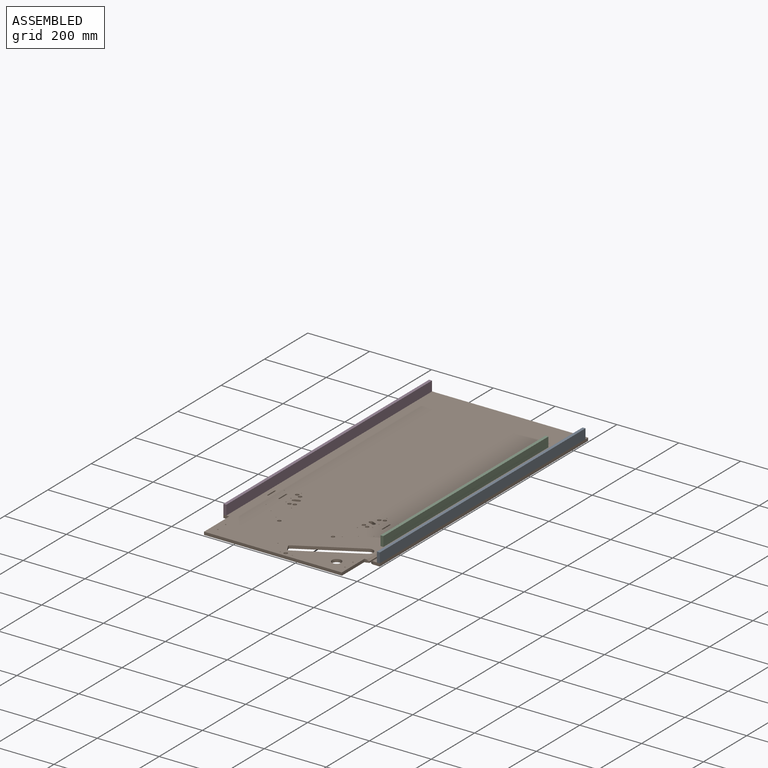
[diagram: assembled view]
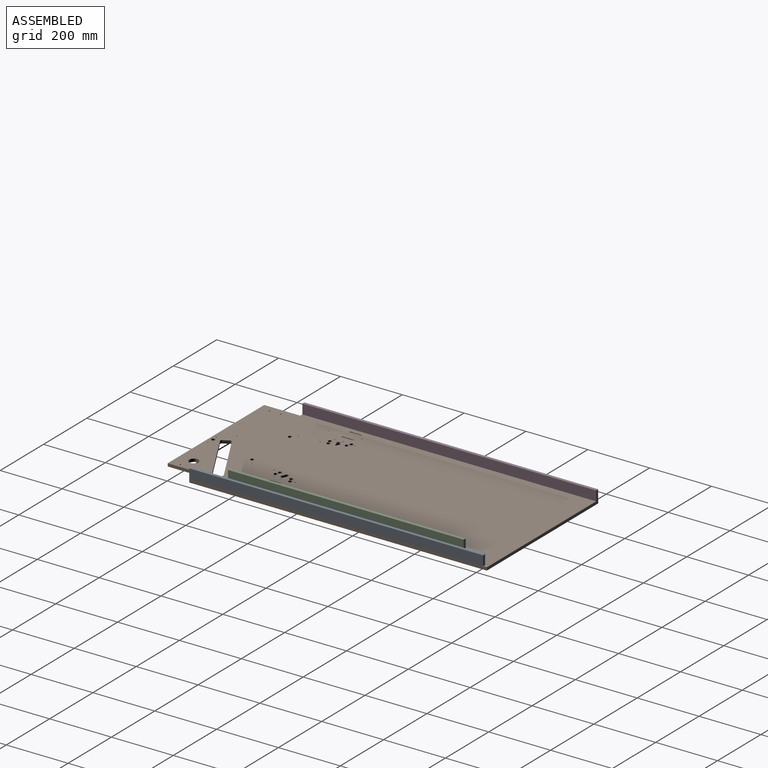
[diagram: assembled view, second angle]
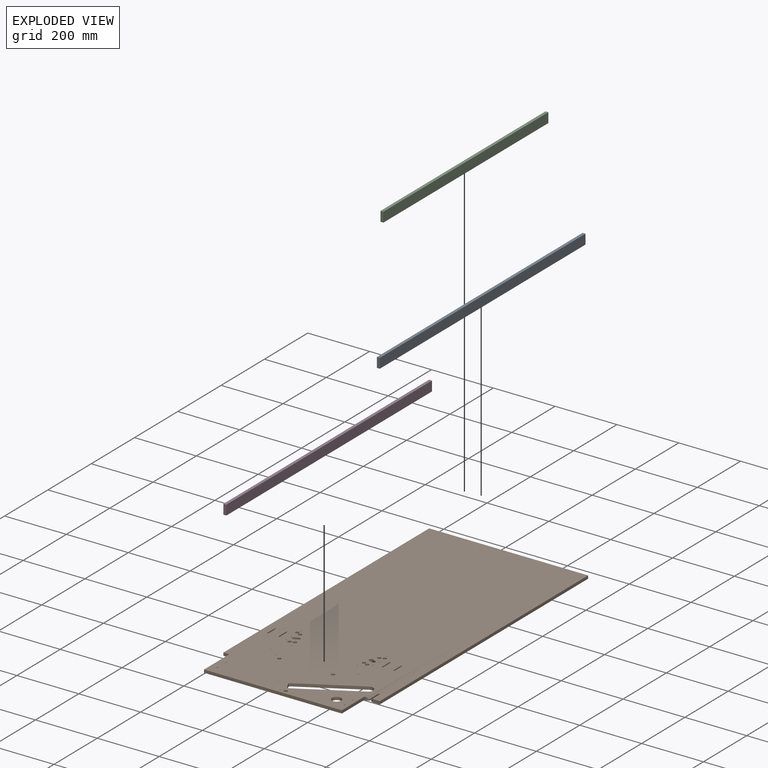
[diagram: exploded view]
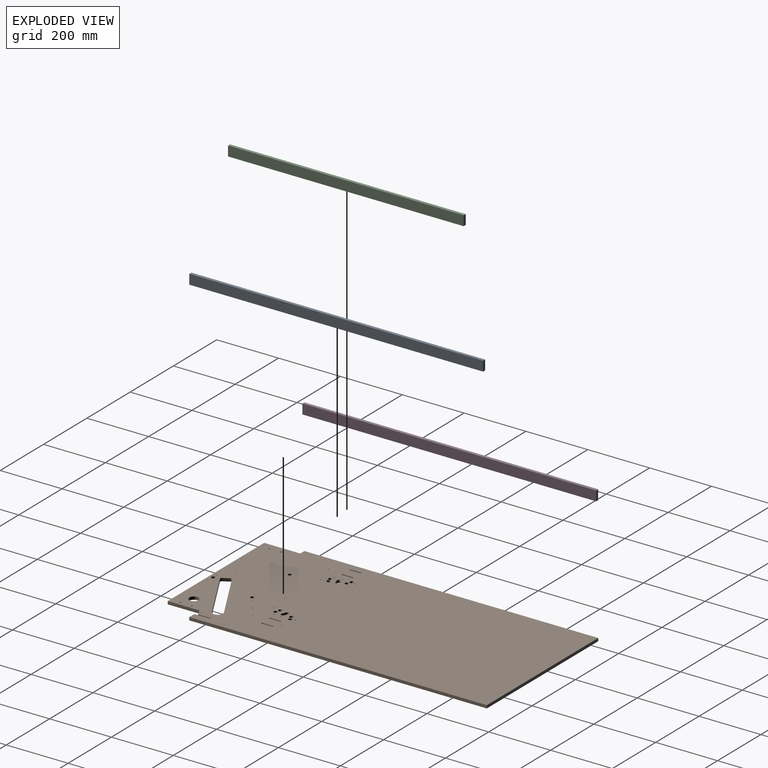
[diagram: exploded view, second angle]
ASSEMBLY  parts=4 mates=7
PART A: 6 faces, bbox 9.5x950x31.8 mm
  f0: plane 949.96x31.75mm, normal (-1,0,0), area 30161.2mm2, adj f1,f3,f4,f5
  f1: plane 31.75x9.53mm, normal (0,-1,0), area 302.4mm2, adj f0,f2,f4,f5
  f2: plane 949.96x31.75mm, normal (1,0,0), area 30161.2mm2, adj f1,f3,f4,f5
  f3: plane 31.75x9.53mm, normal (0,1,0), area 302.4mm2, adj f0,f2,f4,f5
  f4: plane 949.96x9.53mm, normal (0,0,1), area 9048.4mm2, adj f0,f1,f2,f3
  f5: plane 949.96x9.53mm, normal (0,0,-1), area 9048.4mm2, adj f0,f1,f2,f3
PART B: 84 faces, bbox 514.3x1066.8x12.4 mm
  f0: extruded ~11.26x9.53mm, area 174.3mm2, adj f1,f80,f81,f82
  f1: plane 12.24x9.53mm, normal (0.36,-0.93,0), area 125mm2, adj f0,f2,f81,f82
  f2: extruded ~11.26x9.53mm, area 174.3mm2, adj f1,f80,f81,f82
  f3: cylinder r=5.82mm len=11.26mm, axis (0,0,-1), area 174.3mm2, adj f4,f38,f81,f82
  f4: plane 12.24x9.53mm, normal (0.36,0.93,0), area 125mm2, adj f3,f5,f81,f82
  f5: cylinder r=5.82mm len=11.26mm, axis (0,0,-1), area 174.3mm2, adj f4,f38,f81,f82
  f6: cylinder r=2.13mm len=9.53mm, axis (0,0,-1), area 63.8mm2, adj f7,f39,f81,f82
  f7: plane 33.8x9.53mm, normal (1,0,0), area 321.9mm2, adj f6,f8,f81,f82
  f8: cylinder r=2.13mm len=9.53mm, axis (0,0,-1), area 63.8mm2, adj f7,f39,f81,f82
  f9: cylinder r=2.13mm len=9.53mm, axis (0,0,-1), area 63.8mm2, adj f10,f40,f81,f82
  f10: plane 33.8x9.53mm, normal (1,0,0), area 321.9mm2, adj f9,f11,f81,f82
  f11: cylinder r=2.13mm len=9.53mm, axis (0,0,-1), area 63.8mm2, adj f10,f40,f81,f82
  f12: cylinder r=2.13mm len=9.53mm, axis (0,0,-1), area 63.8mm2, adj f13,f41,f81,f82
  f13: plane 33.8x9.53mm, normal (1,0,0), area 321.9mm2, adj f12,f14,f81,f82
  f14: cylinder r=2.13mm len=9.53mm, axis (0,0,-1), area 63.8mm2, adj f13,f41,f81,f82
  f15: cylinder r=15.94mm len=21.69mm, axis (0,0,-1), area 238.4mm2, adj f16,f42,f81,f82
  f16: plane 182.72x102.15mm, normal (-0.49,0.87,0), area 1993.9mm2, adj f15,f17,f81,f82
  f17: cylinder r=5.14mm len=9.53mm, axis (0,0,-1), area 76.9mm2, adj f16,f18,f81,f82
  f18: plane 18.98x10.61mm, normal (0.87,0.49,0), area 207.1mm2, adj f17,f19,f81,f82
  f19: cylinder r=5.14mm len=9.53mm, axis (0,0,-1), area 76.9mm2, adj f18,f20,f81,f82
  f20: plane 182.72x102.15mm, normal (0.49,-0.87,0), area 1993.9mm2, adj f19,f21,f81,f82
  f21: cylinder r=15.94mm len=21.69mm, axis (0,0,-1), area 238.4mm2, adj f20,f42,f81,f82
  f22: cylinder r=2.13mm len=9.53mm, axis (0,0,-1), area 63.8mm2, adj f23,f78,f81,f82
  f23: plane 33.8x9.53mm, normal (-1,0,0), area 321.9mm2, adj f22,f24,f81,f82
  f24: cylinder r=2.13mm len=9.53mm, axis (0,0,-1), area 63.8mm2, adj f23,f78,f81,f82
  f25: plane 9.53x5.74mm, normal (0,-1,0), area 54.7mm2, adj f26,f79,f81,f82
  f26: plane 9.53x8.13mm, normal (0.35,-0.94,0), area 60.8mm2, adj f25,f27,f81,f82,f83
  f27: plane 40.34x5.2mm, normal (1,0,0), area 200.8mm2, adj f26,f28,f82,f83
  f28: cylinder r=2.76mm len=5.53mm, axis (0,0,-1), area 43.7mm2, adj f27,f29,f82,f83
  f29: plane 40.34x5.2mm, normal (-1,0,0), area 200.8mm2, adj f28,f30,f82,f83
  f30: plane 9.53x8.13mm, normal (-0.35,-0.94,0), area 60.8mm2, adj f29,f31,f81,f82,f83
  f31: plane 22.11x9.53mm, normal (0,-1,0), area 210.6mm2, adj f30,f32,f81,f82
  f32: plane 962.2x9.53mm, normal (1,0,0), area 9165mm2, adj f31,f33,f81,f82
  f33: plane 514.31x9.53mm, normal (0,1,0), area 4898.8mm2, adj f32,f34,f81,f82
  f34: plane 950.15x9.53mm, normal (-1,0,0), area 9050.2mm2, adj f33,f35,f81,f82
  f35: plane 19.04x9.53mm, normal (0,-1,0), area 181.4mm2, adj f34,f36,f81,f82
  f36: plane 116.65x9.53mm, normal (-1,0,0), area 1111.1mm2, adj f35,f37,f81,f82
  f37: plane 445.62x9.53mm, normal (0,-1,0), area 4244.5mm2, adj f36,f79,f81,f82
  f38: plane 12.24x9.53mm, normal (-0.36,-0.93,0), area 125mm2, adj f3,f5,f81,f82
  f39: plane 33.8x9.53mm, normal (-1,0,0), area 321.9mm2, adj f6,f8,f81,f82
  f40: plane 33.8x9.53mm, normal (-1,0,0), area 321.9mm2, adj f9,f11,f81,f82
  f41: plane 33.8x9.53mm, normal (-1,0,0), area 321.9mm2, adj f12,f14,f81,f82
  f42: plane 9.53x0.13mm, normal (-0.87,-0.49,0), area 1.5mm2, adj f15,f21,f81,f82
  f43: cylinder r=5.82mm len=11.65mm, axis (0,0,-1), area 348.6mm2, adj f81,f82
  f44: cylinder r=5.82mm len=11.65mm, axis (0,0,-1), area 348.6mm2, adj f81,f82
  f45: cylinder r=5.82mm len=11.65mm, axis (0,0,-1), area 348.6mm2, adj f81,f82
  f46: cylinder r=5.82mm len=11.65mm, axis (0,0,-1), area 348.6mm2, adj f81,f82
  f47: cylinder r=5.82mm len=11.65mm, axis (0,0,-1), area 348.6mm2, adj f81,f82
  f48: cylinder r=2.1mm len=9.53mm, axis (0,0,-1), area 125.5mm2, adj f81,f82
  f49: cylinder r=2.1mm len=9.53mm, axis (0,0,-1), area 125.5mm2, adj f81,f82
  f50: cylinder r=1.5mm len=9.53mm, axis (0,0,-1), area 89.8mm2, adj f81,f82
  f51: cylinder r=1.5mm len=9.53mm, axis (0,0,-1), area 89.8mm2, adj f81,f82
  f52: cylinder r=1.23mm len=9.53mm, axis (0,0,-1), area 73.8mm2, adj f81,f82
  f53: cylinder r=1.23mm len=9.53mm, axis (0,0,-1), area 73.8mm2, adj f81,f82
  f54: cylinder r=1.23mm len=9.53mm, axis (0,0,-1), area 73.8mm2, adj f81,f82
  f55: cylinder r=1.23mm len=9.53mm, axis (0,0,-1), area 73.8mm2, adj f81,f82
  f56: cylinder r=1.52mm len=9.53mm, axis (0,0,-1), area 91.2mm2, adj f81,f82
  f57: cylinder r=1.52mm len=9.53mm, axis (0,0,-1), area 91.2mm2, adj f81,f82
  f58: cylinder r=1.52mm len=9.53mm, axis (0,0,-1), area 91.2mm2, adj f81,f82
  f59: cylinder r=1.52mm len=9.53mm, axis (0,0,-1), area 91.2mm2, adj f81,f82
  f60: cylinder r=1.52mm len=9.53mm, axis (0,0,-1), area 91.2mm2, adj f81,f82
  f61: cylinder r=1.52mm len=9.53mm, axis (0,0,-1), area 91.2mm2, adj f81,f82
  f62: cylinder r=1.52mm len=9.53mm, axis (0,0,-1), area 91.2mm2, adj f81,f82
  f63: cylinder r=1.52mm len=9.53mm, axis (0,0,-1), area 91.2mm2, adj f81,f82
  f64: cylinder r=1.23mm len=9.53mm, axis (0,0,-1), area 73.8mm2, adj f81,f82
  f65: cylinder r=1.23mm len=9.53mm, axis (0,0,-1), area 73.8mm2, adj f81,f82
  f66: cylinder r=1.23mm len=9.53mm, axis (0,0,-1), area 73.8mm2, adj f81,f82
  f67: cylinder r=1.23mm len=9.53mm, axis (0,0,-1), area 73.8mm2, adj f81,f82
  f68: cylinder r=6.05mm len=12.09mm, axis (0,0,-1), area 361.9mm2, adj f81,f82
  f69: cylinder r=1.5mm len=9.53mm, axis (0,0,-1), area 89.8mm2, adj f81,f82
  f70: cylinder r=2.1mm len=9.53mm, axis (0,0,-1), area 125.5mm2, adj f81,f82
  f71: cylinder r=2.1mm len=9.53mm, axis (0,0,-1), area 125.5mm2, adj f81,f82
  f72: cylinder r=15.18mm len=30.37mm, axis (0,0,-1), area 908.7mm2, adj f81,f82
  f73: cylinder r=5.82mm len=11.65mm, axis (0,0,-1), area 348.6mm2, adj f81,f82
  f74: cylinder r=5.82mm len=11.65mm, axis (0,0,-1), area 348.6mm2, adj f81,f82
  f75: cylinder r=5.82mm len=11.65mm, axis (0,0,-1), area 348.6mm2, adj f81,f82
  f76: cylinder r=5.82mm len=11.65mm, axis (0,0,-1), area 348.6mm2, adj f81,f82
  f77: cylinder r=5.82mm len=11.65mm, axis (0,0,-1), area 348.6mm2, adj f81,f82
  f78: plane 33.8x9.53mm, normal (1,0,0), area 321.9mm2, adj f22,f24,f81,f82
  f79: plane 104.6x9.53mm, normal (1,0,0), area 996.3mm2, adj f25,f37,f81,f82
  f80: plane 12.24x9.53mm, normal (-0.36,0.93,0), area 125mm2, adj f0,f2,f81,f82
  f81: plane 1066.8x514.31mm, normal (0,0,1), area 535242.2mm2, adj f0,f1,f2,f3,f4,f5,f6,f7
  f82: plane 1066.8x514.31mm, normal (0,0,-1), area 530484.4mm2, adj f0,f1,f2,f3,f4,f5,f6,f7
  f83: cone r=11.49mm half-angle=0.6deg, axis (0,-1,0), area 6224.5mm2, adj f26,f27,f28,f29,f30,f81
PART C: 6 faces, bbox 9.5x762x31.8 mm
  f0: plane 762x31.75mm, normal (-1,0,0), area 24193.5mm2, adj f1,f3,f4,f5
  f1: plane 31.75x9.53mm, normal (0,-1,0), area 302.4mm2, adj f0,f2,f4,f5
  f2: plane 762x31.75mm, normal (1,0,0), area 24193.5mm2, adj f1,f3,f4,f5
  f3: plane 31.75x9.53mm, normal (0,1,0), area 302.4mm2, adj f0,f2,f4,f5
  f4: plane 762x9.53mm, normal (0,0,1), area 7258.1mm2, adj f0,f1,f2,f3
  f5: plane 762x9.53mm, normal (0,0,-1), area 7258.1mm2, adj f0,f1,f2,f3
PART D: same geometry as A
PLACE A t=(304.15,-428.56,5.57)mm
PLACE B t=(56.52,-22.42,-3.96)mm fixed
PLACE C rot(axis=(1,0,0),0deg) t=(253.07,-339.16,5.57)mm
PLACE D t=(-200.64,-416.51,5.57)mm
MATE planar A.f5 <-> B.f81  axis (0,0,-1) through (308.91,46.42,5.57)mm
MATE planar C.f5 <-> B.f81  axis (0,0,-1) through (257.83,41.84,5.57)mm
MATE planar D.f0 <-> B.f34  axis (-1,0,0) through (-200.64,58.47,21.44)mm
MATE planar D.f5 <-> B.f81  axis (0,0,-1) through (-195.88,58.47,5.57)mm
MATE planar A.f1 <-> B.f31  axis (0,-1,0) through (308.91,-428.56,21.44)mm
MATE planar B.f32 <-> A.f2  axis (1,0,0) through (313.67,52.54,0.8)mm
MATE planar D.f1 <-> B.f35  axis (0,-1,0) through (-195.88,-416.51,21.44)mm
